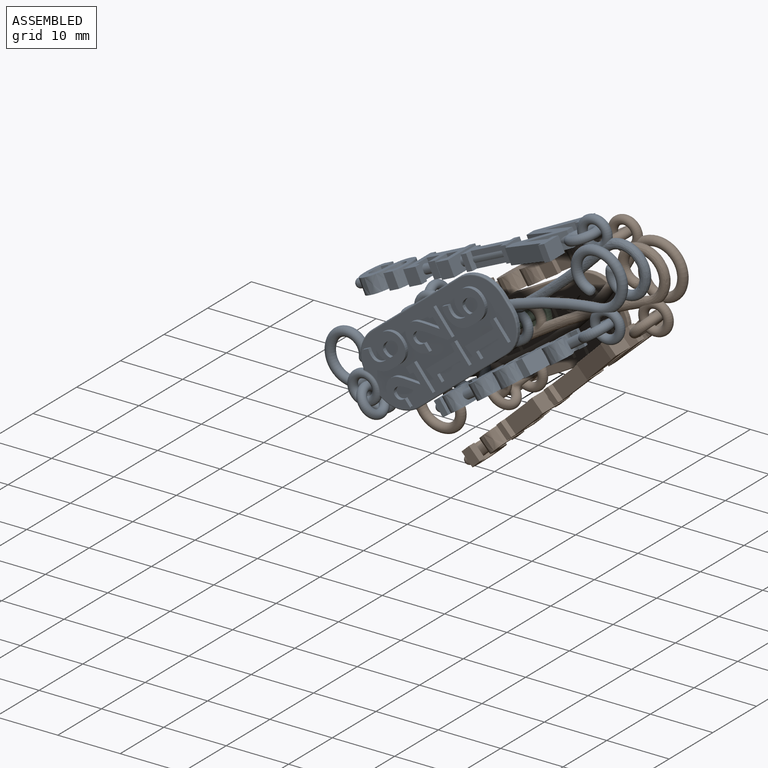
[diagram: assembled view]
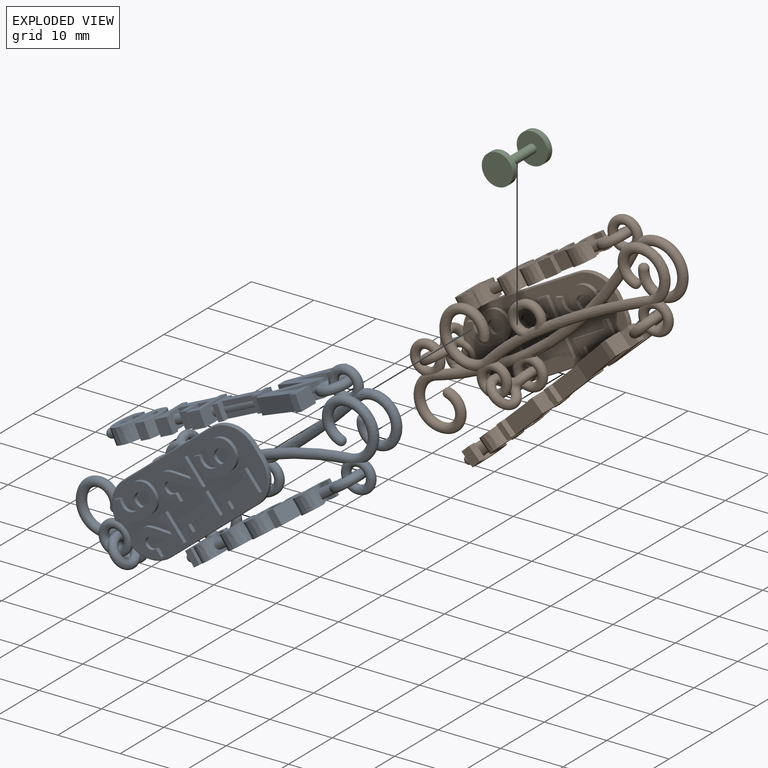
[diagram: exploded view]
GUIDED TOUR — MATED ASSEMBLY WITH SUBASSEMBLIES (Onshape document 4201b98728dd3f75bc3a8736, AutoMate assembly 4201b98728dd3f75bc3a8736_8688086e3d48b883623aebee_d8ded47748fd1c12bb597d22_default)

This assembly has 15 component occurrences arranged in 3 top-level units: 1 individual components plus 2 subassemblies (S0, S1). The tour has two levels: first the top level, where each subassembly is treated as one rigid unit; then each subassembly is toured internally in its own section (nesting deeper than one subassembly level is flattened into its subassembly's section).

Components are labeled P0..P14 across the whole record; subassembly units are labeled S0..S1. A mate is a constraint between two units; its type names the relative motion it leaves free:
  FASTENED — locks the two components together rigidly (no relative motion).
Axis/direction vectors are unit vectors and 'through' points are millimeter coordinates, both in the assembly's world frame.

TOP-LEVEL MATES (between units; each subassembly's internal mates are listed in its own section)
  1. FASTENED "Fastened 1": S0 <-> S1, direction (0.000, -1.000, 0.000) through (6.85, -24.92, -1.30) mm
  2. FASTENED "Fastened 2": P13 <-> S1, direction (0.000, 1.000, 0.000) through (6.35, -21.92, -1.63) mm

TOP-LEVEL ASSEMBLY ORDER
  1. S1 — the base component [order verified]
  2. S0 [order verified]
  3. P13 [order verified]
Order-tag legend:
  [order verified] — this step's position reverses a verified removal order: the component was checked to insert without passing through the ones already placed.

Of the 15 component occurrences, 1 carries the full construction recipe — the FeatureScript program that regenerates the part's solid from scratch; the rest are supplied as boundary geometry only. Each toured unit is shown spotlighted twice — assembled, then exploded with a leader line back to its socket (green = recipe-attached component, orange = geometry-only, blue = subassembly unit; the rest desaturated gray).
NOTE — this tour is split across 2 documents so each fits a 32k-token context. This is document 1: the component sections continue in the remaining 1 document, each repeating the header above.
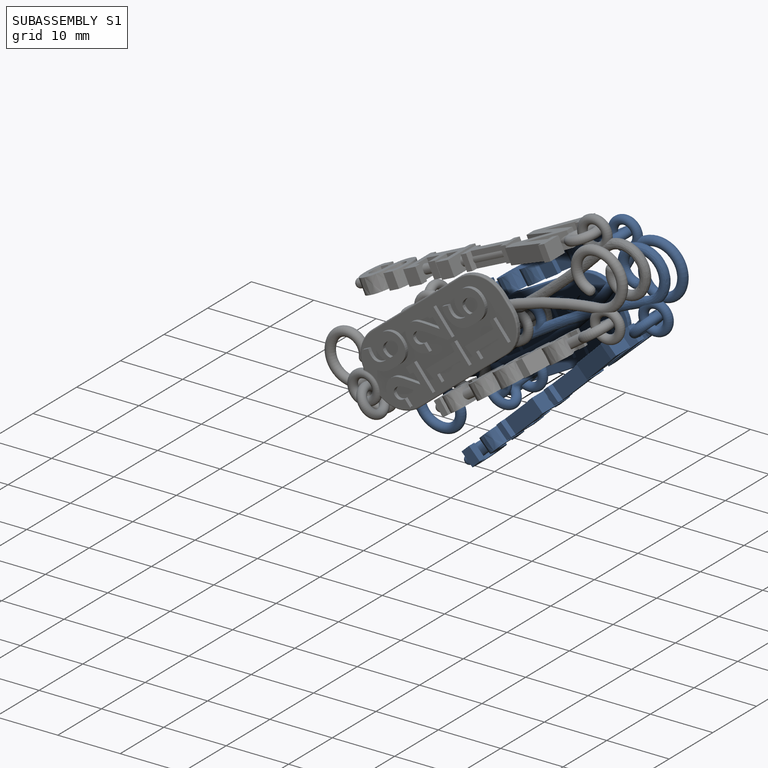
[diagram: subassembly S1 — assembled]
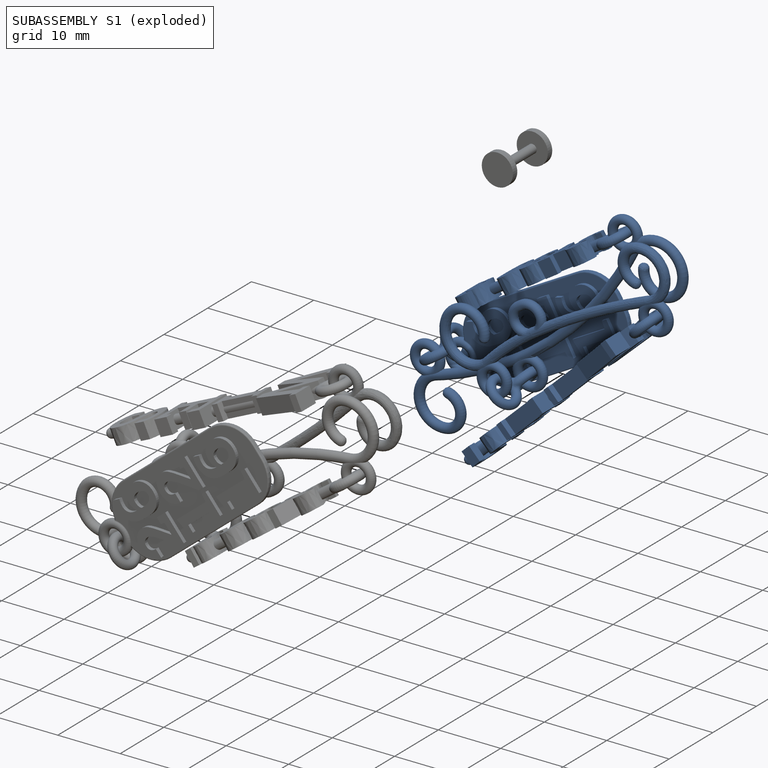
[diagram: subassembly S1 — exploded]
SUBASSEMBLY S1 — 7 components (P3, P4, P5, P6, P11, P12, P14), of which 0 recipe-attached; toured below.
Held by: FASTENED mate "Fastened 1" to S0; FASTENED mate "Fastened 2" to P13.
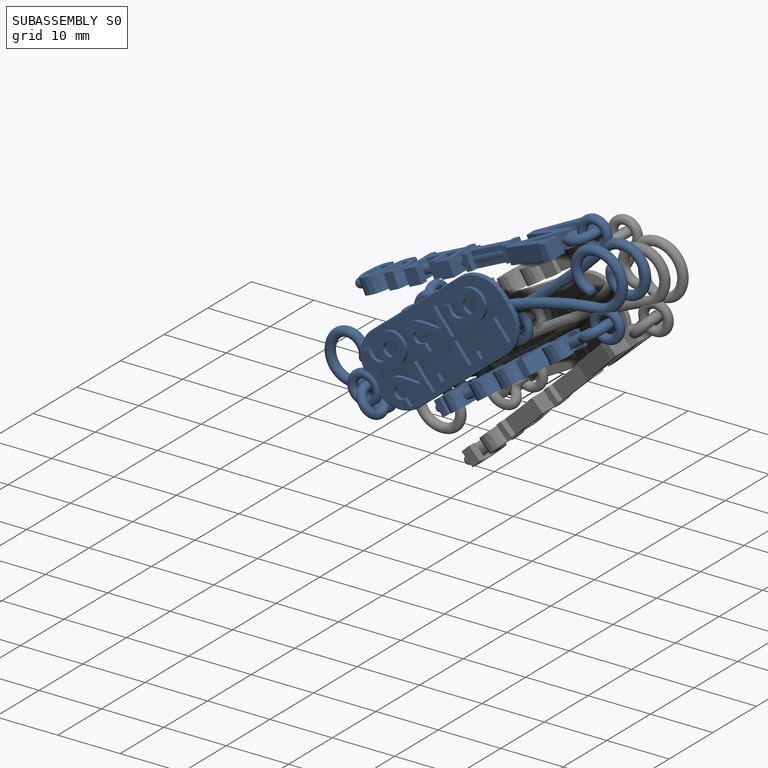
[diagram: subassembly S0 — assembled]
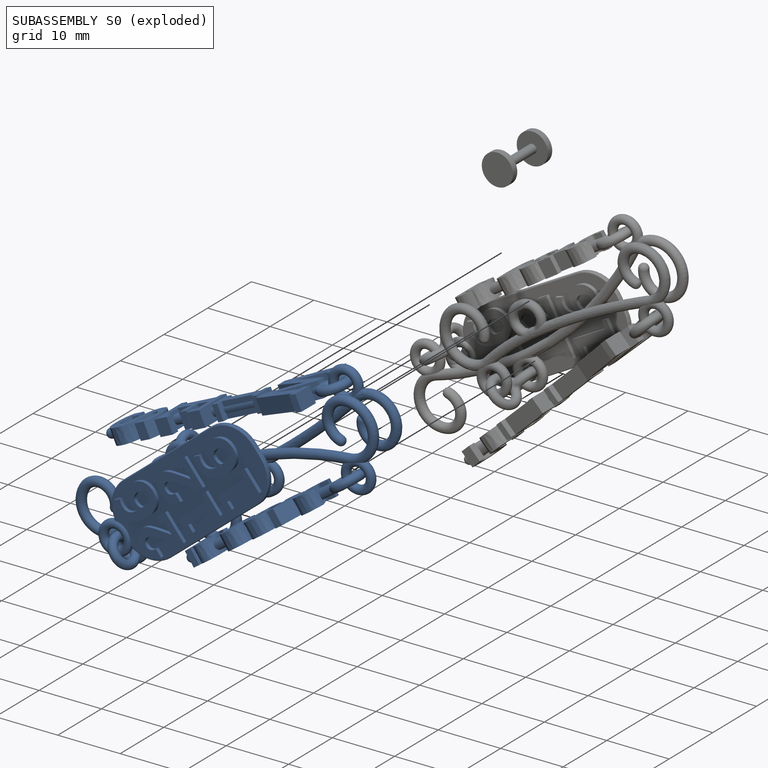
[diagram: subassembly S0 — exploded]
SUBASSEMBLY S0 — 7 components (P0, P1, P2, P7, P8, P9, P10), of which 0 recipe-attached; toured below.
Held by: FASTENED mate "Fastened 1" to S1.
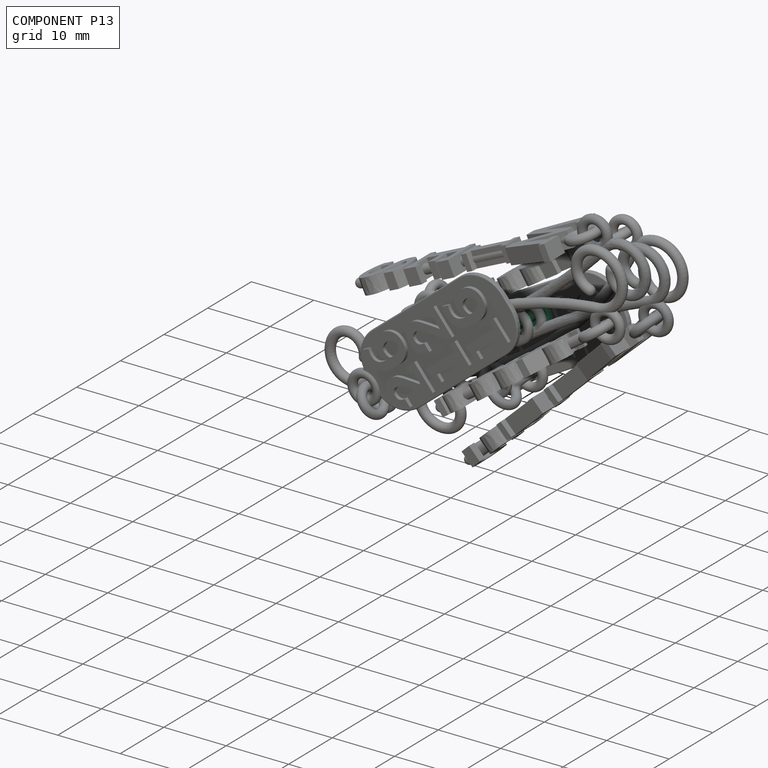
[diagram: component P13 — assembled]
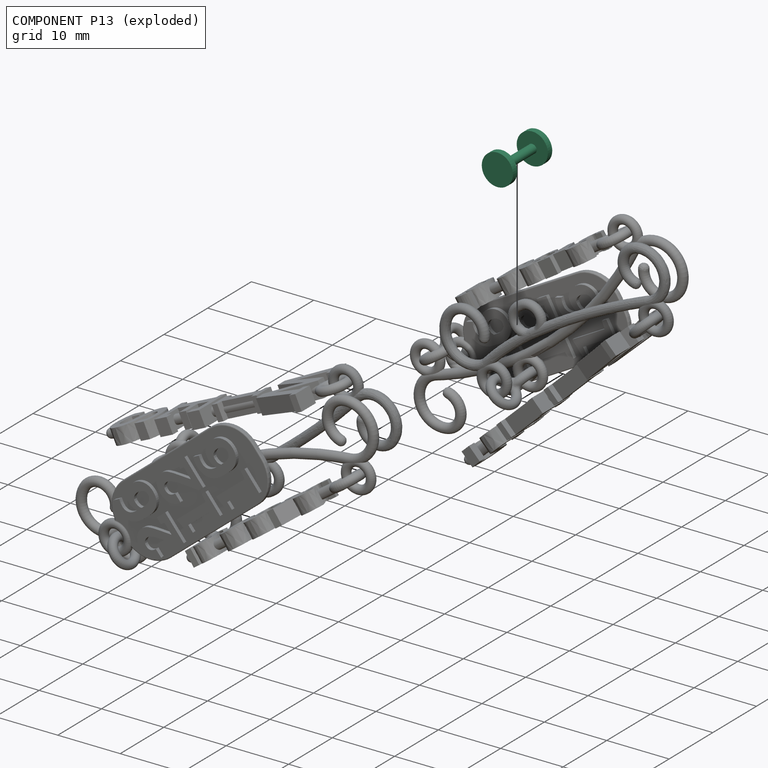
[diagram: component P13 — exploded]
COMPONENT P13 — recipe-attached (CADFS 00287742, mesh-verified: the recipe's output STEP matches this component's geometry to below the mesh-comparison resolution (tessellation chordal tolerance ~0.0172 mm)).
Held by: FASTENED mate "Fastened 2" to P3.
Construction recipe (FeatureScript — the CAD program that rebuilds this solid; sketch coordinates are in the units given by the * unit suffixes, e.g. mm):

FeatureScript 1511;
import(path : "onshape/std/geometry.fs", version : "1511.0");
import(path : "onshape/std/common.fs", version : "1511.0");
const mm = millimeter;
const VERTEX = EntityType.VERTEX;
const EDGE = EntityType.EDGE;
const FACE = EntityType.FACE;
const BODY = EntityType.BODY;
function v(x, y){return vector(x, y);}
function OD(order){return orderDisambiguation(order);}
function OSD(set){return originalSetDisambiguation(set);}
function TD(topology){return topologyDisambiguation(topology);}
function TDD(query){return trueDependencyDisambiguation(query);}
function sQuery(a, b, c) {return sketchEntityQuery(a, b, c);}

annotation { "Feature Type Name" : "Feature", "Feature Type Description" : "" }
export const myFeature = defineFeature(function(context is Context, id is Id, definition is map)
    precondition{}
    {
        {
            var Q0;
            Q0=qCreatedBy(makeId("Front.planeOp"),FACE);
            var sketch = newSketch(context, id + "F0", { "sketchPlane" : qUnion([Q0])});
            skLineSegment(sketch, "E0", {"start": v(0, 8.37) * mm, "end": v(0, -9.23) * mm, "construction": true});
            skLineSegment(sketch, "E1", {"start": v(8.25, 0) * mm, "end": v(-8.12, 0) * mm, "construction": true});
            skLineSegment(sketch, "E2", {"start": v(0, 0.7) * mm, "end": v(3.5, 0.7) * mm});
            skLineSegment(sketch, "E3", {"start": v(3.5, 0.7) * mm, "end": v(3.5, 2.5) * mm});
            skLineSegment(sketch, "E4", {"start": v(3.5, 2.5) * mm, "end": v(4.5, 2.5) * mm});
            skLineSegment(sketch, "E5", {"start": v(4.5, 2.5) * mm, "end": v(4.5, 0) * mm});
            skLineSegment(sketch, "E6.MirrorCS", {"start": v(-3.5, 0.7) * mm, "end": v(-3.5, 2.5) * mm});
            skLineSegment(sketch, "E7.MirrorCS", {"start": v(-4.5, 2.5) * mm, "end": v(-4.5, 0) * mm});
            skLineSegment(sketch, "E8.MirrorCS", {"start": v(-3.5, 2.5) * mm, "end": v(-4.5, 2.5) * mm});
            skLineSegment(sketch, "E9.MirrorCS", {"start": v(0, 0.7) * mm, "end": v(-3.5, 0.7) * mm});
            skLineSegment(sketch, "E10", {"start": v(-4.5, 0) * mm, "end": v(4.5, 0) * mm});
            skSolve(sketch);
        }
        {
            var Q0;
            Q0 = qSketchRegion(id + "F0", true);
            var Q1;
            Q1=sQuery(id+"F0.wireOp",EDGE,"E1");
            revolve(context, id + "F1", {"entities" : qUnion([Q0]), "axis" : qUnion([Q1]), "revolveType" : RevolveType.FULL});
        }
        {
            var Q0;
            Q0=qCreatedBy(makeId("Right.planeOp"),FACE);
            cPlane(context, id + "F2", {"entities" : qUnion([Q0]), "cplaneType" : CPlaneType.OFFSET, "offset" : 2 * mm, "width" : 150 * mm, "height" : 150 * mm});
        }
        {
            var Q0;
            Q0=qCreatedBy(id+"F2.planeOp",FACE);
            var sketch = newSketch(context, id + "F3", { "sketchPlane" : qUnion([Q0])});
            skCircle(sketch, "E11.0", {"center": v(0, 0) * mm, "radius": 0.7 * mm});
            skSolve(sketch);
        }
    });
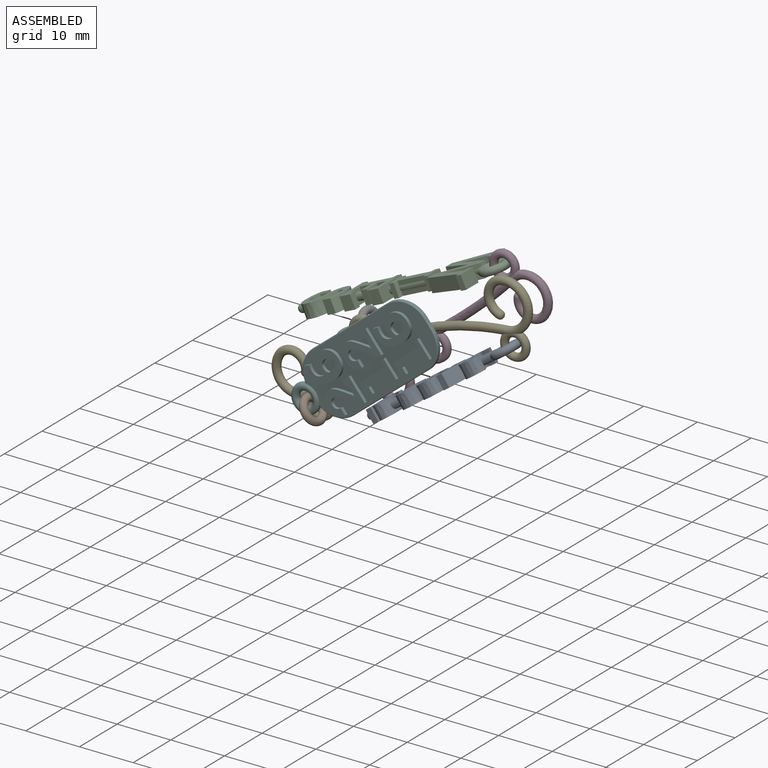
[diagram: subassembly S0 — assembled view]
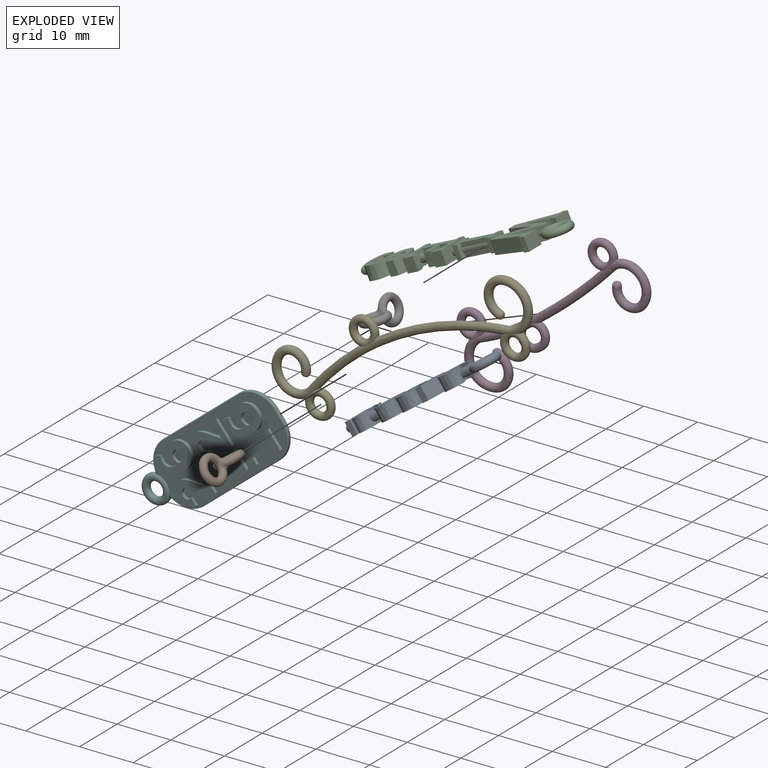
[diagram: subassembly S0 — exploded view]
SUBASSEMBLY S0 TOUR — 7 components, shown here in isolation at its own camera.

INTERNAL MATES
  1. FASTENED "Fastened 3": P9 <-> P1, direction (-0.775, 0.000, -0.631) through (-10.16, -33.32, -13.35) mm
  2. FASTENED "Fastened 5": P7 <-> P2, direction (0.000, 1.000, 0.000) through (19.54, -24.92, 15.59) mm
  3. FASTENED "Fastened 7": P0 <-> P8, direction (0.043, -0.999, 0.030) through (24.51, -29.12, 5.15) mm
  4. FASTENED "Fastened 4": P7 <-> P10, direction (0.939, 0.000, 0.345) through (-5.53, -24.92, -0.72) mm
  5. FASTENED "Fastened 6": P10 <-> P8, direction (0.000, 1.000, 0.000) through (-3.65, -29.12, -0.03) mm
  6. FASTENED "Fastened 2": P1 <-> P8, direction (0.000, -1.000, 0.000) through (-11.80, -29.12, -14.50) mm
  7. FASTENED "Fastened 6": P10 <-> P8, direction (0.000, 1.000, 0.000) through (-3.65, -29.12, -0.03) mm
  8. FASTENED "Fastened 2": P1 <-> P8, direction (0.000, -1.000, 0.000) through (-11.80, -29.12, -14.50) mm
  9. FASTENED "Fastened 4": P7 <-> P10, direction (0.939, 0.000, 0.345) through (-5.53, -24.92, -0.72) mm
  10. FASTENED "Fastened 5": P7 <-> P2, direction (0.000, 1.000, 0.000) through (19.54, -24.92, 15.59) mm
  11. FASTENED "Fastened 7": P0 <-> P8, direction (0.043, -0.999, 0.030) through (24.51, -29.12, 5.15) mm
  12. FASTENED "Fastened 3": P9 <-> P1, direction (-0.775, 0.000, -0.631) through (-10.16, -33.32, -13.35) mm

ASSEMBLY ORDER (within the subassembly)
  1. P8 — the base component [order heuristic]
  2. P0 [order heuristic]
  3. P1 [order heuristic]
  4. P10 [order heuristic]
  5. P7 [order heuristic]
  6. P9 [order heuristic]
  7. P2 [order heuristic]
Order-tag legend:
  [order heuristic] — this assembly is geometrically interlocked (no collision-free removal order exists), so components are listed in mate-graph order; insertion feasibility is not verified.
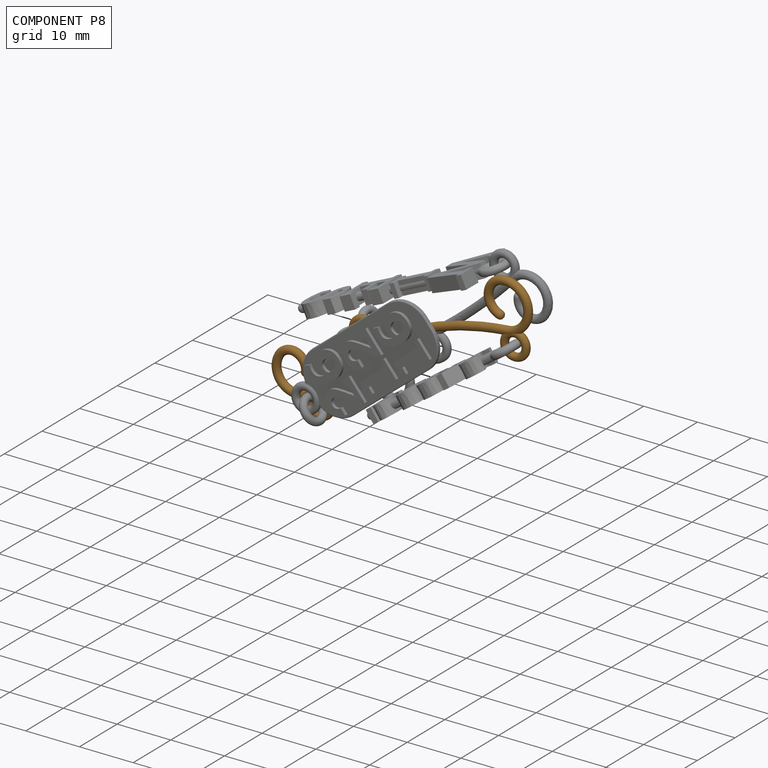
[diagram: component P8 — assembled]
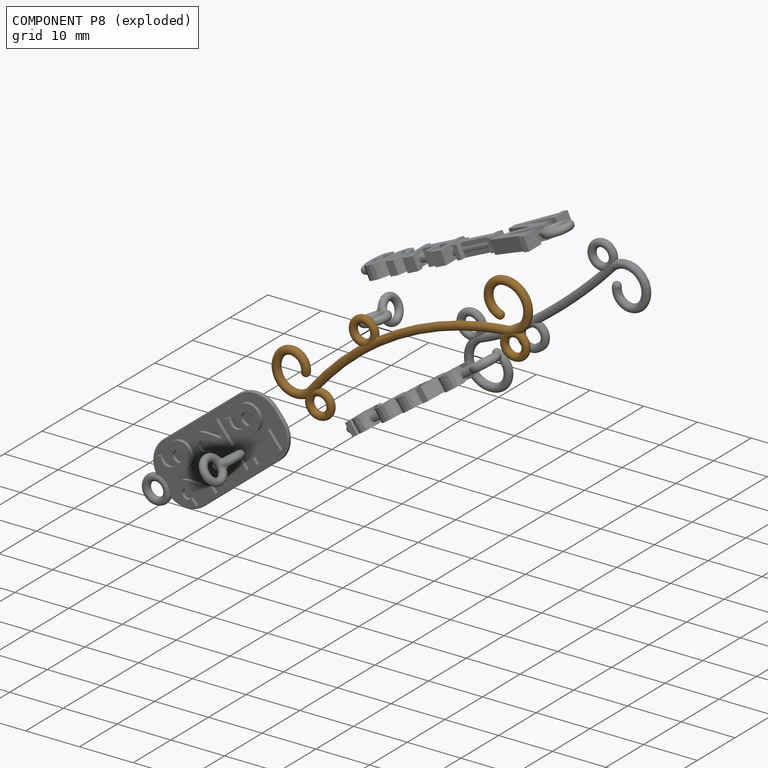
[diagram: component P8 — exploded]
COMPONENT P8 — geometry summary (no construction recipe available for this part):
  bounding box: 54.4 x 18.6 x 1.6 mm
  B-rep topology: 1 solid, 12 faces, 66 edges
  volume: 198 mm^3 (13% of its bounding box)
  symmetry: mirror-symmetric across its y mid-plane
Held by: FASTENED mate "Fastened 7" to P0; FASTENED mate "Fastened 6" to P10; FASTENED mate "Fastened 2" to P1; FASTENED mate "Fastened 6" to P10; FASTENED mate "Fastened 2" to P1; FASTENED mate "Fastened 7" to P0.
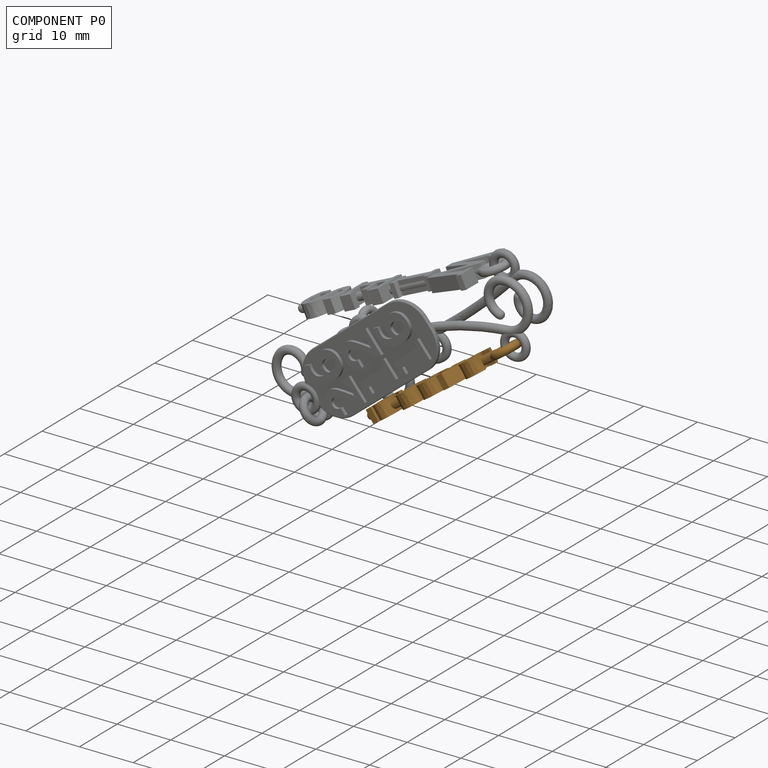
[diagram: component P0 — assembled]
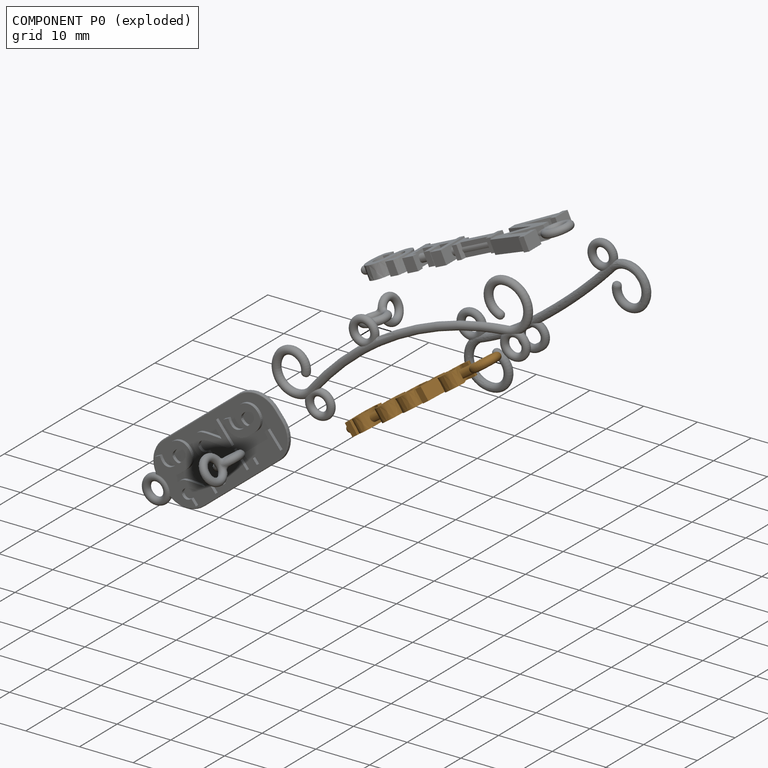
[diagram: component P0 — exploded]
COMPONENT P0 — geometry summary (no construction recipe available for this part):
  bounding box: 33.0 x 7.8 x 2.5 mm
  B-rep topology: 1 solid, 169 faces, 1006 edges
  volume: 223 mm^3 (34% of its bounding box)
  symmetry: mirror-symmetric across its y mid-plane
Held by: FASTENED mate "Fastened 7" to P8; FASTENED mate "Fastened 7" to P8.
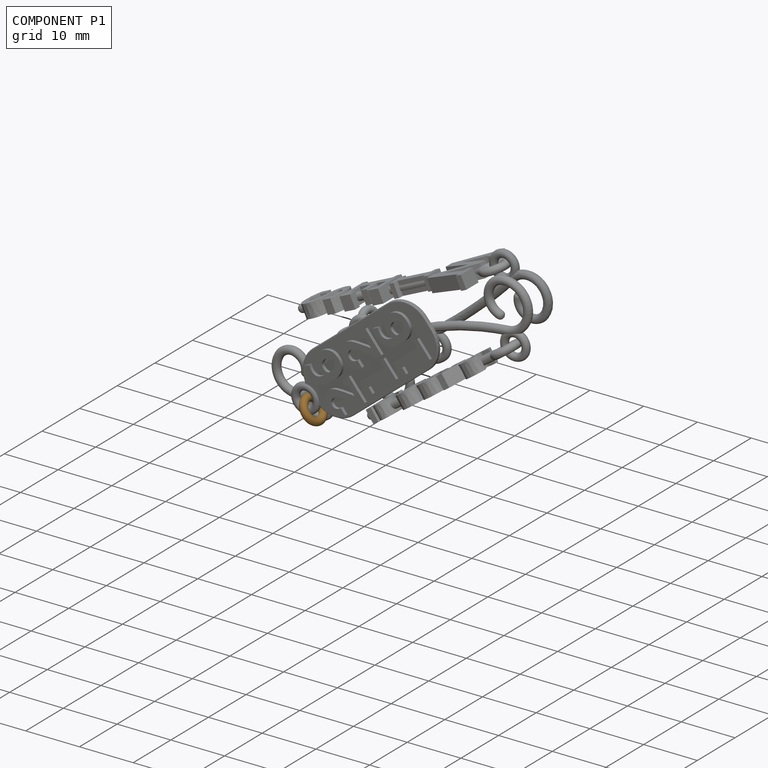
[diagram: component P1 — assembled]
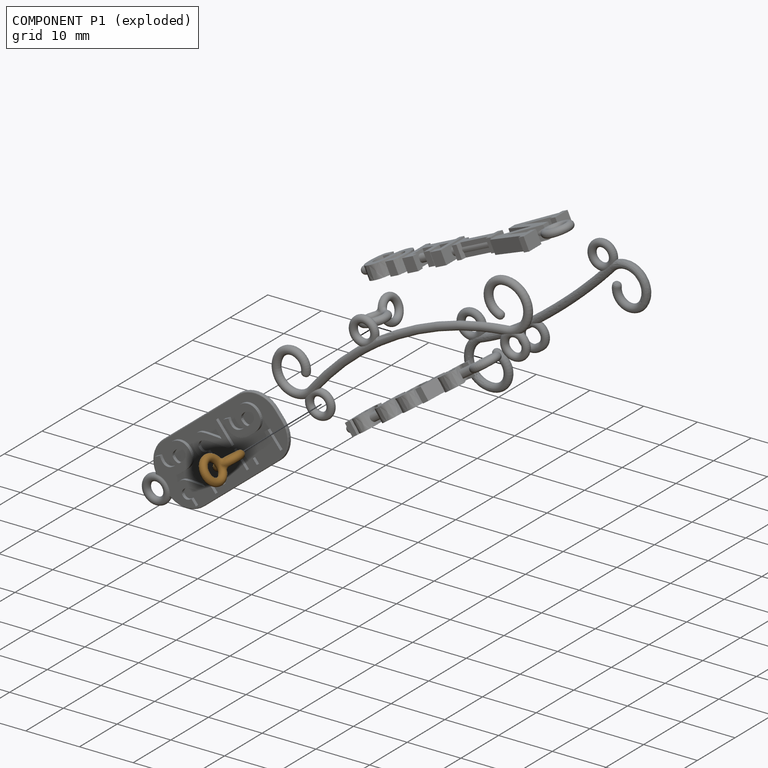
[diagram: component P1 — exploded]
COMPONENT P1 — geometry summary (no construction recipe available for this part):
  bounding box: 10.0 x 5.8 x 5.8 mm
  B-rep topology: 1 solid, 3 faces, 14 edges
  volume: 37 mm^3 (11% of its bounding box)
  symmetry: 2-fold rotationally symmetric about the z axis; mirror-symmetric across its x mid-plane, y mid-plane
Held by: FASTENED mate "Fastened 3" to P9; FASTENED mate "Fastened 2" to P8; FASTENED mate "Fastened 2" to P8; FASTENED mate "Fastened 3" to P9.
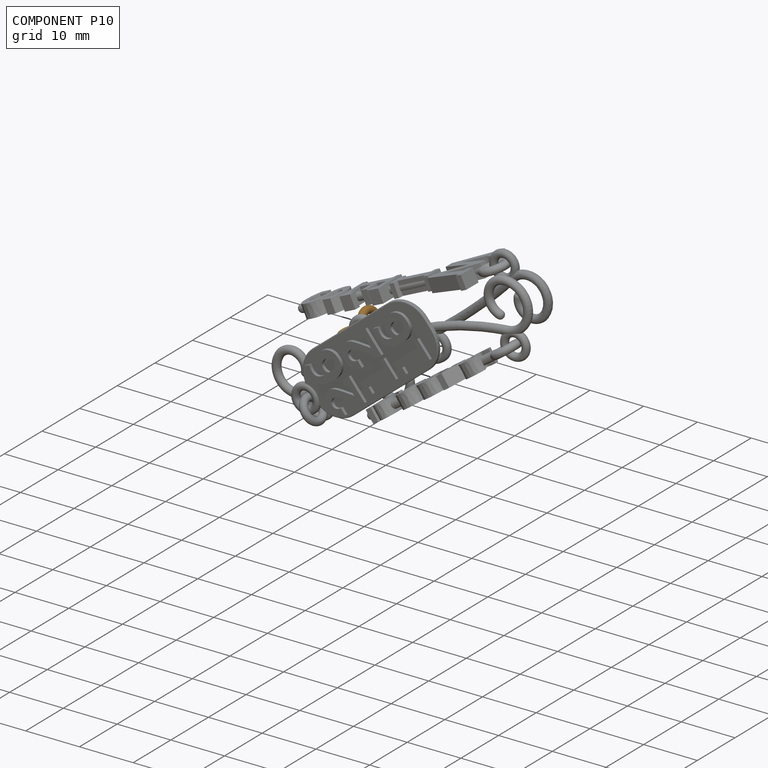
[diagram: component P10 — assembled]
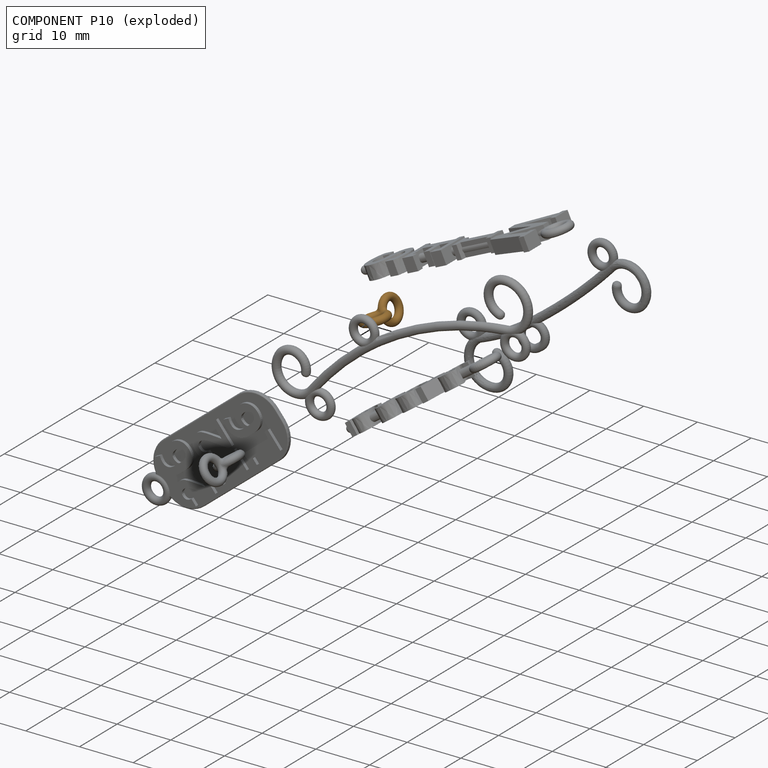
[diagram: component P10 — exploded]
COMPONENT P10 — geometry summary (no construction recipe available for this part):
  bounding box: 10.0 x 5.8 x 5.8 mm
  B-rep topology: 1 solid, 3 faces, 14 edges
  volume: 37 mm^3 (11% of its bounding box)
  symmetry: 2-fold rotationally symmetric about the z axis; mirror-symmetric across its x mid-plane, y mid-plane
Held by: FASTENED mate "Fastened 4" to P7; FASTENED mate "Fastened 6" to P8; FASTENED mate "Fastened 6" to P8; FASTENED mate "Fastened 4" to P7.
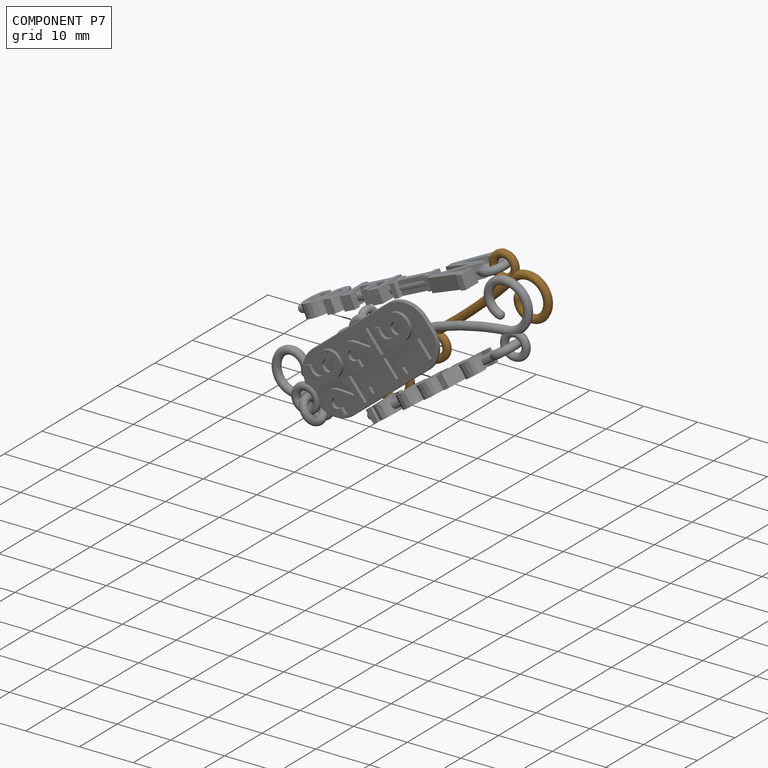
[diagram: component P7 — assembled]
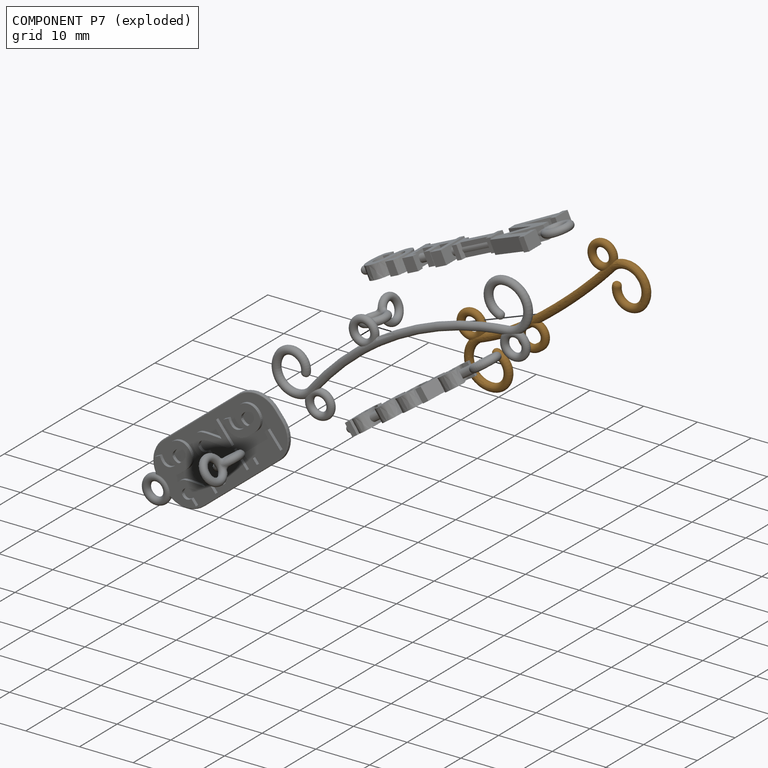
[diagram: component P7 — exploded]
COMPONENT P7 — geometry summary (no construction recipe available for this part):
  bounding box: 41.1 x 15.4 x 1.6 mm
  B-rep topology: 1 solid, 15 faces, 80 edges
  volume: 173 mm^3 (18% of its bounding box)
  symmetry: mirror-symmetric across its y mid-plane
Held by: FASTENED mate "Fastened 5" to P2; FASTENED mate "Fastened 4" to P10; FASTENED mate "Fastened 4" to P10; FASTENED mate "Fastened 5" to P2.
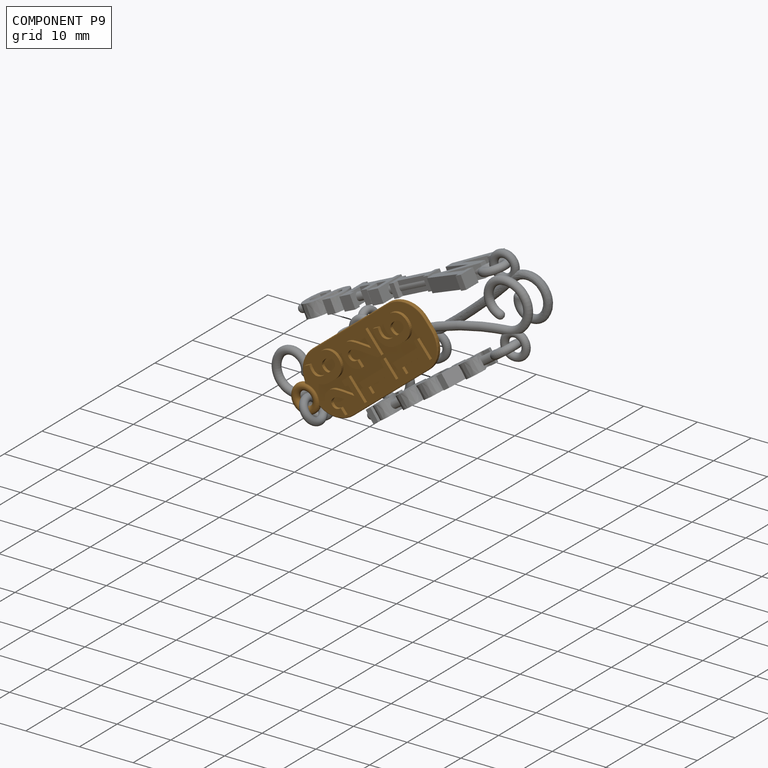
[diagram: component P9 — assembled]
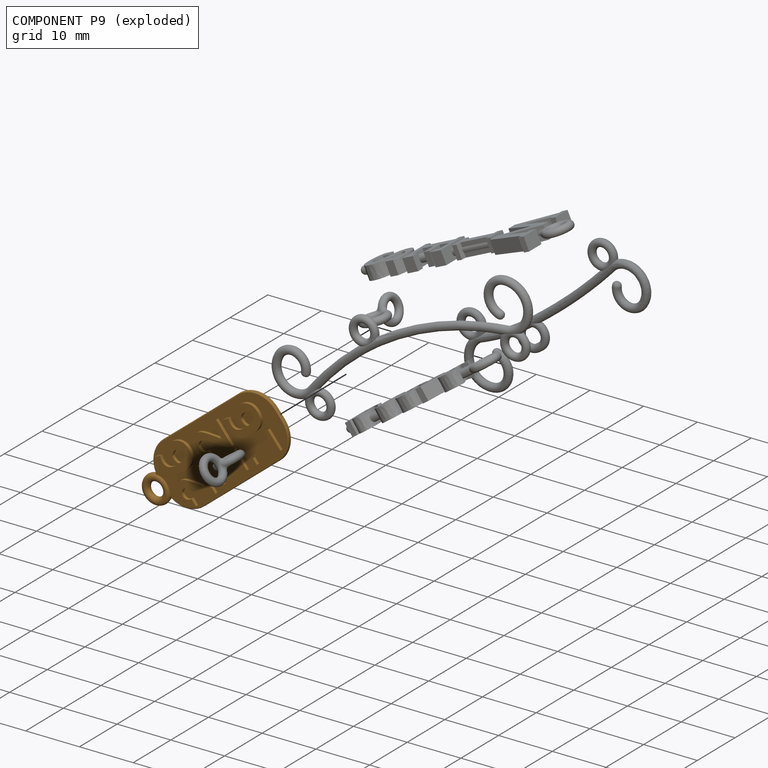
[diagram: component P9 — exploded]
COMPONENT P9 — geometry summary (no construction recipe available for this part):
  bounding box: 32.9 x 12.8 x 2.0 mm
  B-rep topology: 1 solid, 292 faces, 1608 edges
  volume: 389 mm^3 (46% of its bounding box)
  symmetry: 2-fold rotationally symmetric about the z axis
Held by: FASTENED mate "Fastened 3" to P1; FASTENED mate "Fastened 3" to P1.
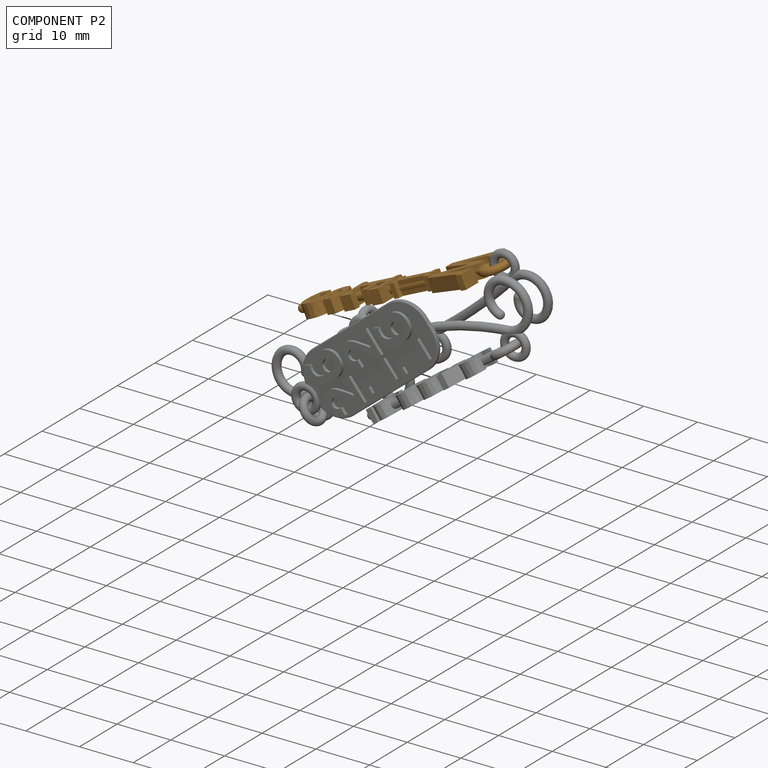
[diagram: component P2 — assembled]
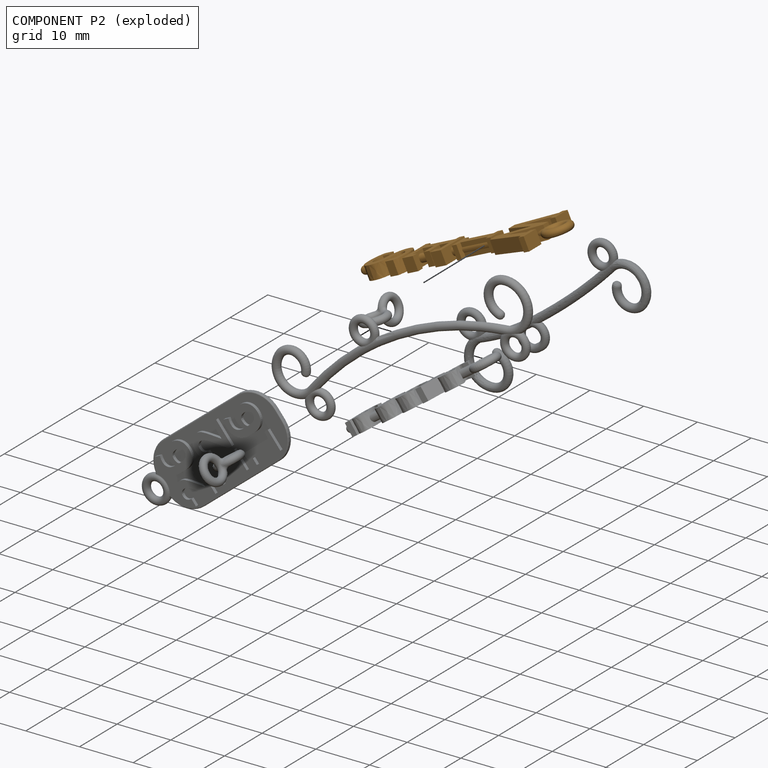
[diagram: component P2 — exploded]
COMPONENT P2 — geometry summary (no construction recipe available for this part):
  bounding box: 43.0 x 11.7 x 2.6 mm
  B-rep topology: 1 solid, 114 faces, 676 edges
  volume: 361 mm^3 (28% of its bounding box)
  symmetry: mirror-symmetric across its y mid-plane
Held by: FASTENED mate "Fastened 5" to P7; FASTENED mate "Fastened 5" to P7.
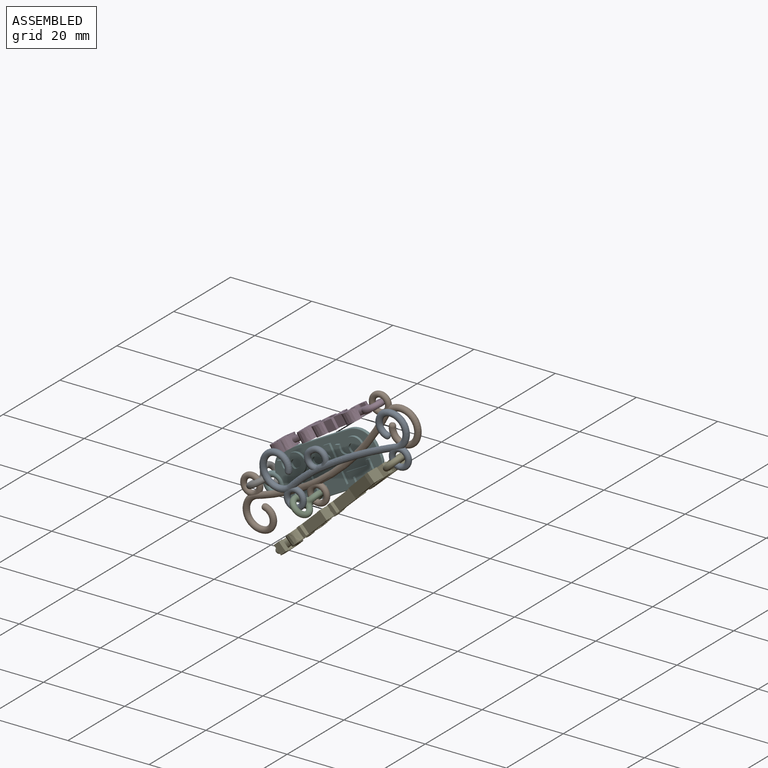
[diagram: subassembly S1 — assembled view]
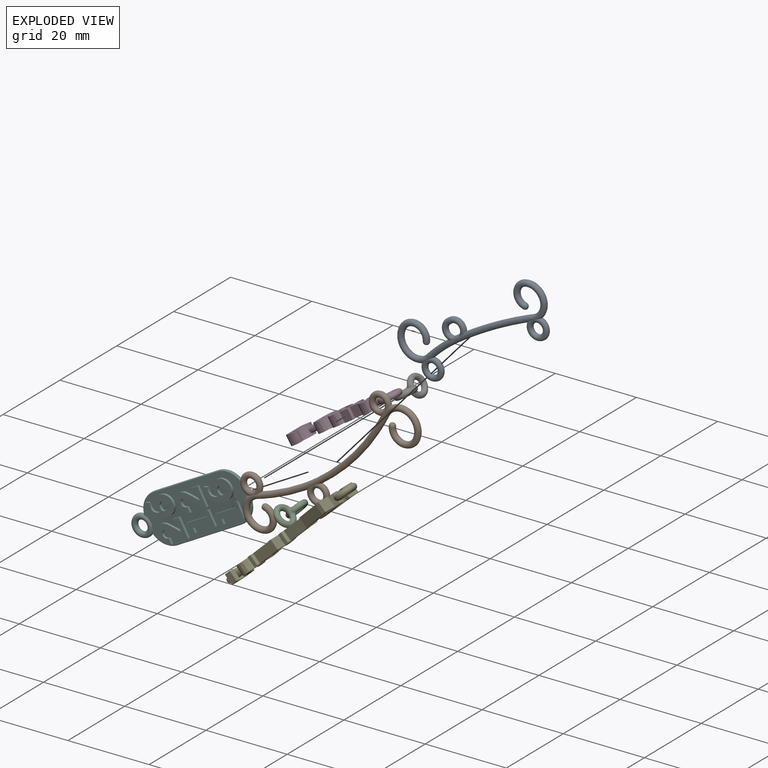
[diagram: subassembly S1 — exploded view]
SUBASSEMBLY S1 TOUR — 7 components, shown here in isolation at its own camera.

INTERNAL MATES
  1. FASTENED "Fastened 3": P12 <-> P14, direction (-0.873, 0.000, -0.487) through (-10.64, -13.52, -12.65) mm
  2. FASTENED "Fastened 5": P3 <-> P11, direction (0.000, -1.000, 0.000) through (27.23, -21.92, 4.25) mm
  3. FASTENED "Fastened 7": P6 <-> P4, direction (0.044, 0.999, 0.029) through (19.36, -17.72, 12.73) mm
  4. FASTENED "Fastened 4": P3 <-> P5, direction (0.667, 0.000, 0.745) through (2.82, -21.92, -13.01) mm
  5. FASTENED "Fastened 6": P5 <-> P4, direction (0.000, -1.000, 0.000) through (4.15, -17.72, -11.52) mm
  6. FASTENED "Fastened 2": P14 <-> P4, direction (0.000, 1.000, 0.000) through (-12.31, -17.72, -13.74) mm
  7. FASTENED "Fastened 3": P12 <-> P14, direction (-0.873, 0.000, -0.487) through (-10.64, -13.52, -12.65) mm
  8. FASTENED "Fastened 5": P3 <-> P11, direction (0.000, -1.000, 0.000) through (27.23, -21.92, 4.25) mm
  9. FASTENED "Fastened 2": P14 <-> P4, direction (0.000, 1.000, 0.000) through (-12.31, -17.72, -13.74) mm
  10. FASTENED "Fastened 7": P6 <-> P4, direction (0.044, 0.999, 0.029) through (19.36, -17.72, 12.73) mm
  11. FASTENED "Fastened 6": P5 <-> P4, direction (0.000, -1.000, 0.000) through (4.15, -17.72, -11.52) mm
  12. FASTENED "Fastened 4": P3 <-> P5, direction (0.667, 0.000, 0.745) through (2.82, -21.92, -13.01) mm

ASSEMBLY ORDER (within the subassembly)
  1. P4 — the base component [order heuristic]
  2. P5 [order heuristic]
  3. P6 [order heuristic]
  4. P14 [order heuristic]
  5. P3 [order heuristic]
  6. P12 [order heuristic]
  7. P11 [order heuristic]
Order-tag legend:
  [order heuristic] — this assembly is geometrically interlocked (no collision-free removal order exists), so components are listed in mate-graph order; insertion feasibility is not verified.
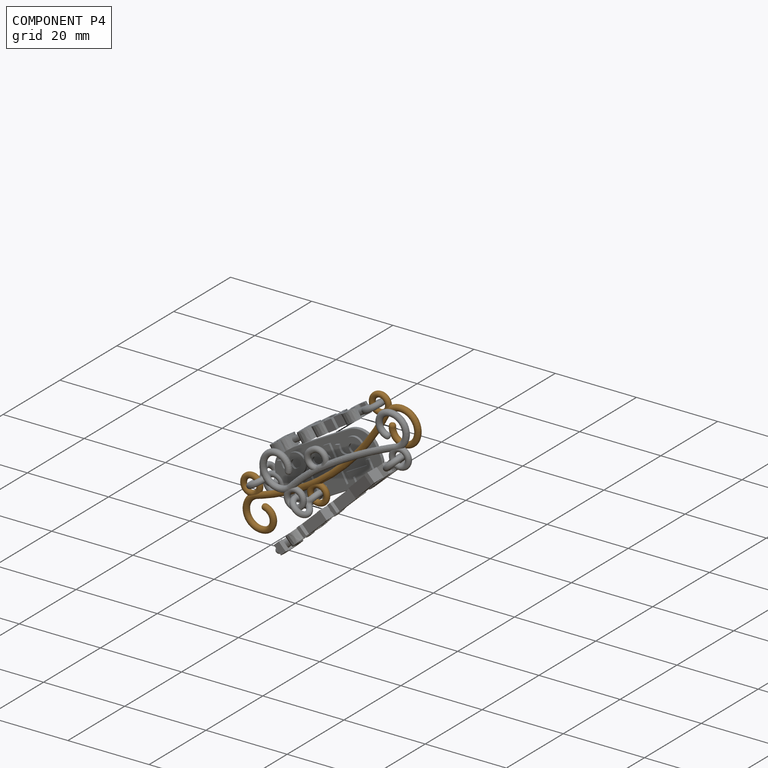
[diagram: component P4 — assembled]
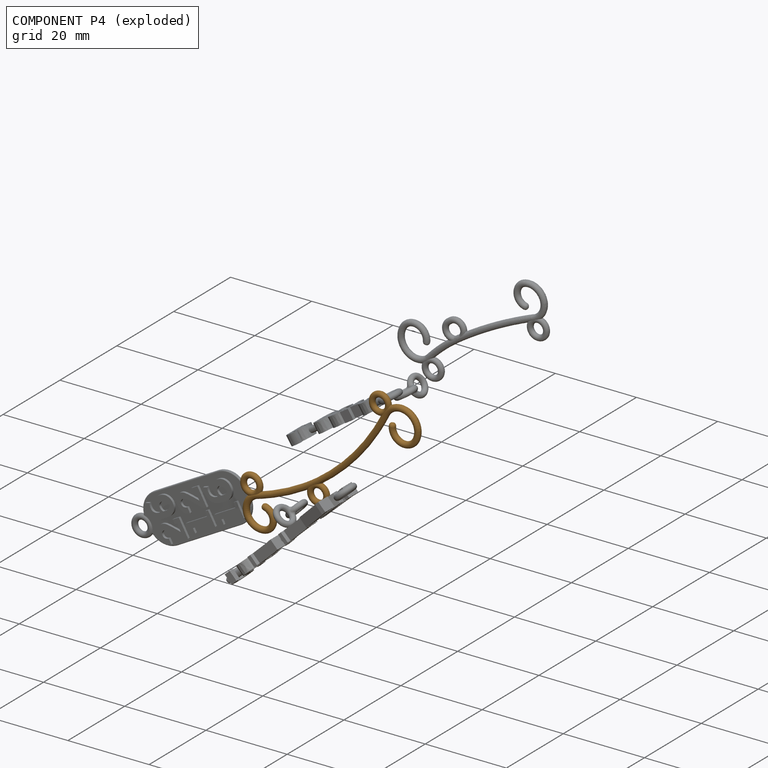
[diagram: component P4 — exploded]
COMPONENT P4 — geometry summary (no construction recipe available for this part):
  bounding box: 54.4 x 18.6 x 1.6 mm
  B-rep topology: 1 solid, 12 faces, 66 edges
  volume: 198 mm^3 (13% of its bounding box)
  symmetry: mirror-symmetric across its y mid-plane
Held by: FASTENED mate "Fastened 7" to P6; FASTENED mate "Fastened 6" to P5; FASTENED mate "Fastened 2" to P14; FASTENED mate "Fastened 2" to P14; FASTENED mate "Fastened 7" to P6; FASTENED mate "Fastened 6" to P5.
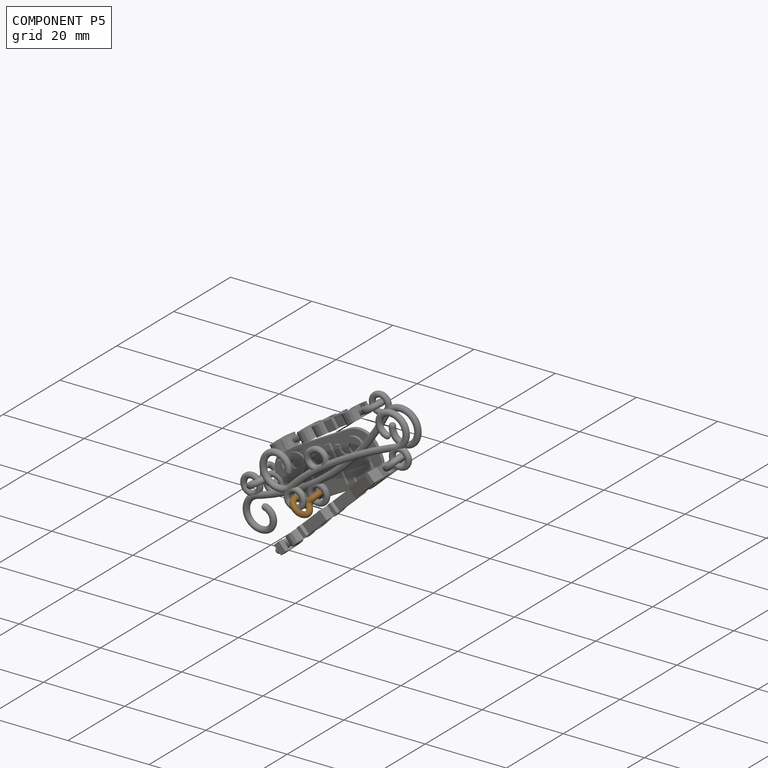
[diagram: component P5 — assembled]
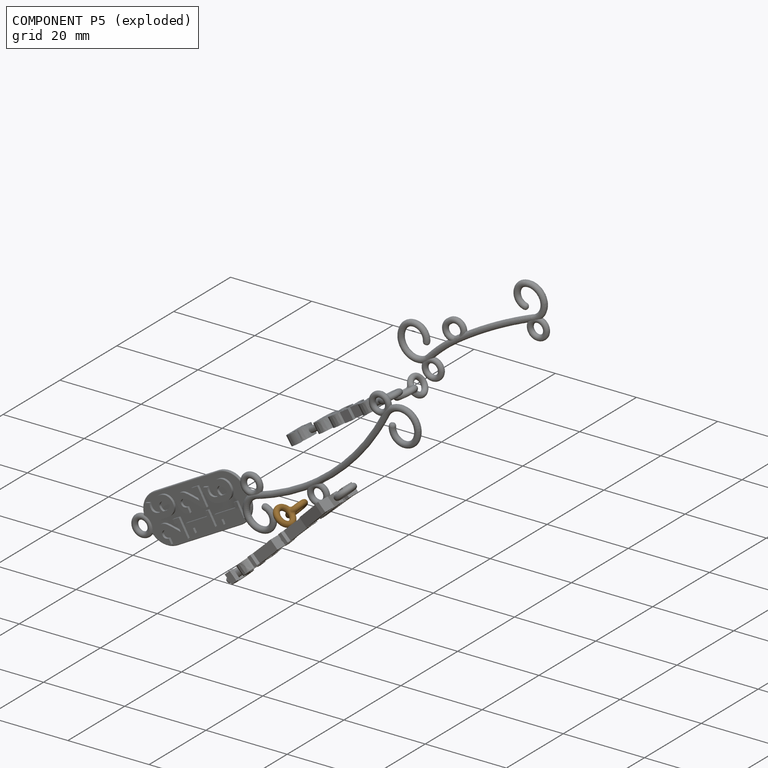
[diagram: component P5 — exploded]
COMPONENT P5 — geometry summary (no construction recipe available for this part):
  bounding box: 10.0 x 5.8 x 5.8 mm
  B-rep topology: 1 solid, 3 faces, 14 edges
  volume: 37 mm^3 (11% of its bounding box)
  symmetry: 2-fold rotationally symmetric about the z axis; mirror-symmetric across its x mid-plane, y mid-plane
Held by: FASTENED mate "Fastened 4" to P3; FASTENED mate "Fastened 6" to P4; FASTENED mate "Fastened 6" to P4; FASTENED mate "Fastened 4" to P3.
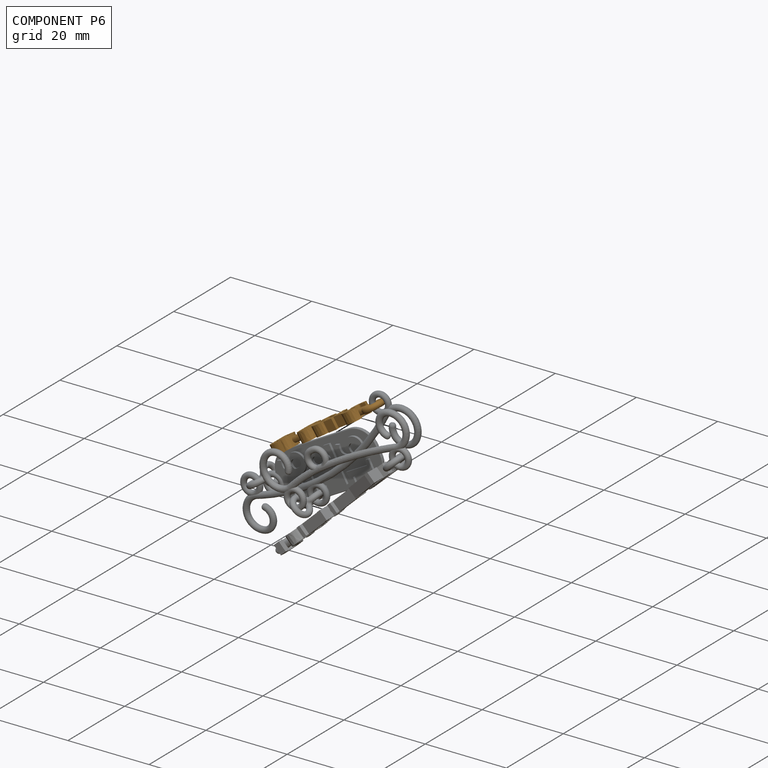
[diagram: component P6 — assembled]
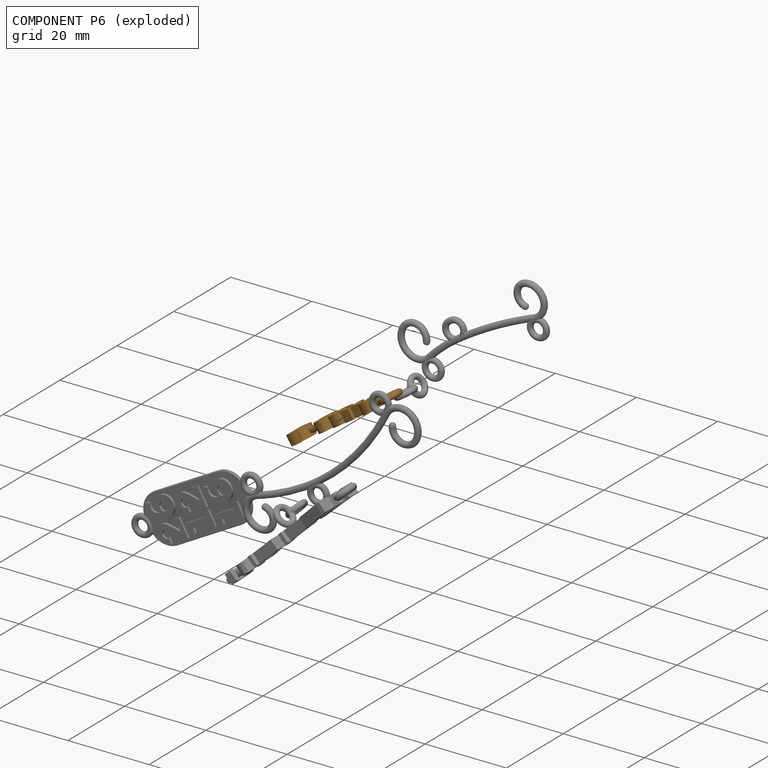
[diagram: component P6 — exploded]
COMPONENT P6 — geometry summary (no construction recipe available for this part):
  bounding box: 33.0 x 7.8 x 2.5 mm
  B-rep topology: 1 solid, 169 faces, 1006 edges
  volume: 223 mm^3 (34% of its bounding box)
  symmetry: mirror-symmetric across its y mid-plane
Held by: FASTENED mate "Fastened 7" to P4; FASTENED mate "Fastened 7" to P4.
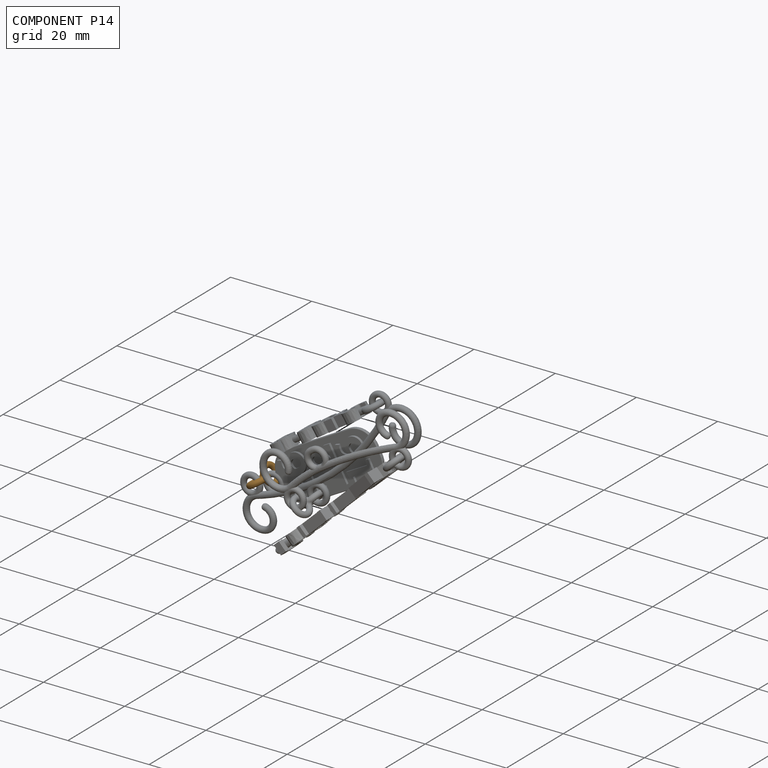
[diagram: component P14 — assembled]
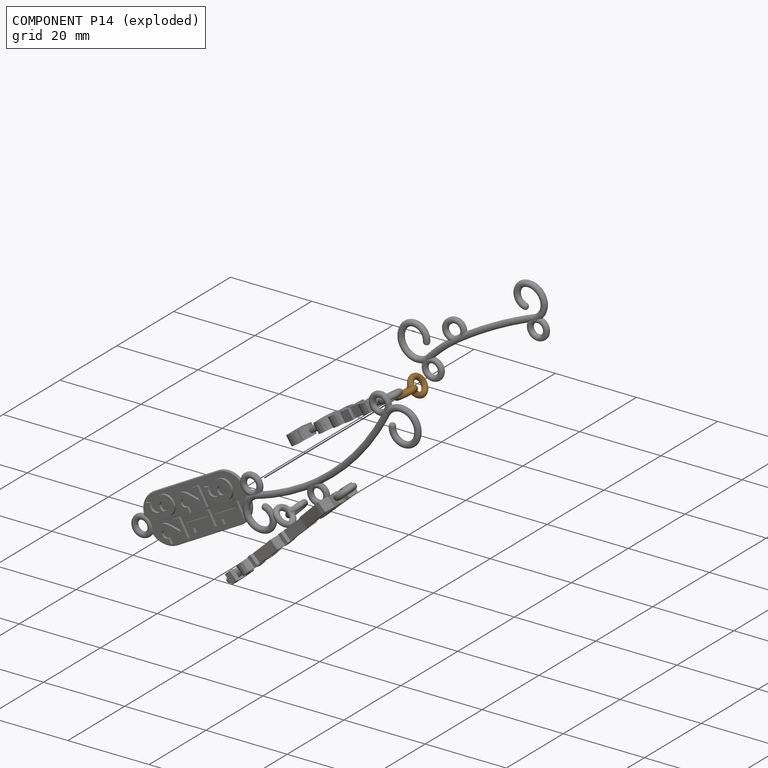
[diagram: component P14 — exploded]
COMPONENT P14 — geometry summary (no construction recipe available for this part):
  bounding box: 10.0 x 5.8 x 5.8 mm
  B-rep topology: 1 solid, 3 faces, 14 edges
  volume: 37 mm^3 (11% of its bounding box)
  symmetry: 2-fold rotationally symmetric about the z axis; mirror-symmetric across its x mid-plane, y mid-plane
Held by: FASTENED mate "Fastened 3" to P12; FASTENED mate "Fastened 2" to P4; FASTENED mate "Fastened 3" to P12; FASTENED mate "Fastened 2" to P4.
